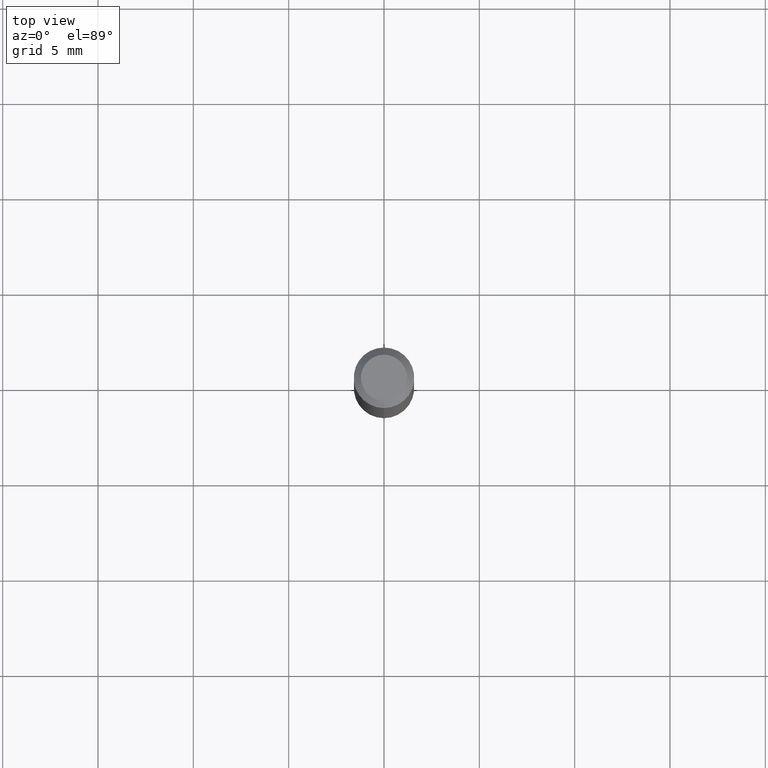
[diagram: clean part render]
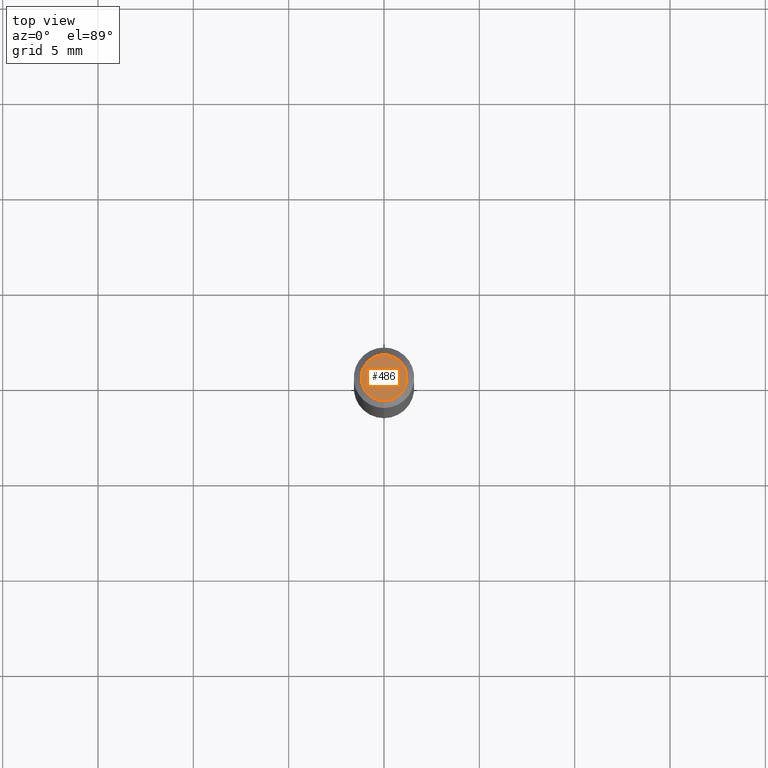
[diagram: same view with one face highlighted and labeled with its STEP entity id]
A machine part, top view. The second image highlights one B-rep face of the part: STEP entity #486.
In plain terms, the highlighted planar face has unit normal (0, -0, -1).
Its self-contained STEP definition (entity closure, byte-faithful):
#6 = DIRECTION ( 'NONE',  ( 6.982962677686265922E-15, 1.000000000000000000, -3.491463564824593118E-15 ) ) ;
#43 = CIRCLE ( 'NONE', #347, 0.04749999999999999362 ) ;
#78 = DIRECTION ( 'NONE',  ( -6.982962677686266711E-15, -1.000000000000000000, 3.491463564824593906E-15 ) ) ;
#85 = VERTEX_POINT ( 'NONE', #436 ) ;
#109 = DIRECTION ( 'NONE',  ( -2.445481217715955060E-29, 3.491463564824593118E-15, 1.000000000000000000 ) ) ;
#122 = FACE_OUTER_BOUND ( 'NONE', #204, .T. ) ;
#132 = AXIS2_PLACEMENT_3D ( 'NONE', #271, #359, #6 ) ;
#159 = CARTESIAN_POINT ( 'NONE',  ( -3.773273898774340269E-16, -0.04749999999999999362, 4.053323177511738528E-16 ) ) ;
#165 = PLANE ( 'NONE',  #132 ) ;
#175 = EDGE_CURVE ( 'NONE', #85, #201, #372, .T. ) ;
#201 = VERTEX_POINT ( 'NONE', #159 ) ;
#204 = EDGE_LOOP ( 'NONE', ( #238, #362 ) ) ;
#225 = CARTESIAN_POINT ( 'NONE',  ( -5.856629129131595822E-45, 8.361629224104893650E-31, 2.394877984220056620E-16 ) ) ;
#238 = ORIENTED_EDGE ( 'NONE', *, *, #175, .T. ) ;
#271 = CARTESIAN_POINT ( 'NONE',  ( 3.316907271900976096E-16, 0.04749999999999999362, -4.610062011816531671E-17 ) ) ;
#316 = CARTESIAN_POINT ( 'NONE',  ( -5.856629129131595822E-45, 8.361629224104893650E-31, 2.394877984220056620E-16 ) ) ;
#347 = AXIS2_PLACEMENT_3D ( 'NONE', #225, #480, #354 ) ;
#354 = DIRECTION ( 'NONE',  ( -6.982962677686266711E-15, -1.000000000000000000, 3.491463564824593906E-15 ) ) ;
#359 = DIRECTION ( 'NONE',  ( 2.445481217715954779E-29, -3.491463564824593118E-15, -1.000000000000000000 ) ) ;
#362 = ORIENTED_EDGE ( 'NONE', *, *, #418, .T. ) ;
#372 = CIRCLE ( 'NONE', #481, 0.04749999999999999362 ) ;
#418 = EDGE_CURVE ( 'NONE', #201, #85, #43, .T. ) ;
#436 = CARTESIAN_POINT ( 'NONE',  ( 3.840629472727447874E-16, 0.04749999999999999362, 7.364327909283752044E-17 ) ) ;
#480 = DIRECTION ( 'NONE',  ( -2.445481217715955060E-29, 3.491463564824593118E-15, 1.000000000000000000 ) ) ;
#481 = AXIS2_PLACEMENT_3D ( 'NONE', #316, #109, #78 ) ;
#486 = ADVANCED_FACE ( 'NONE', ( #122 ), #165, .F. ) ;